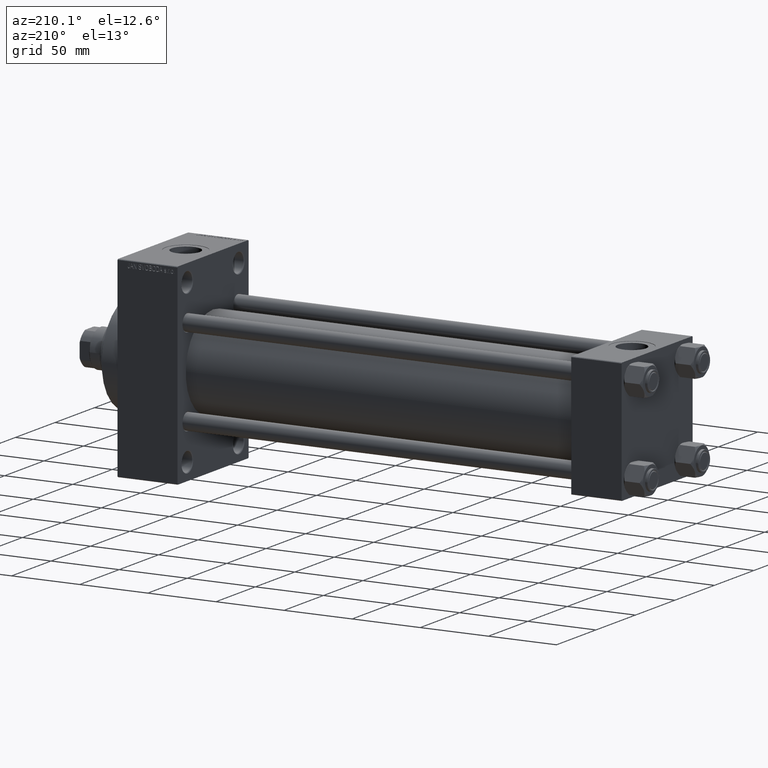
[diagram: clean part render]
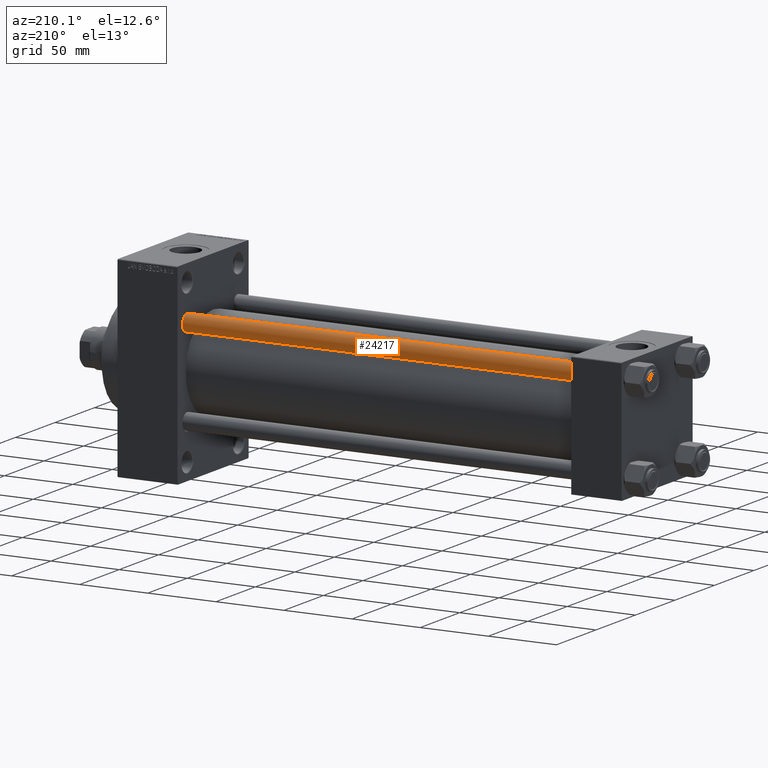
[diagram: same view with one face highlighted and labeled with its STEP entity id]
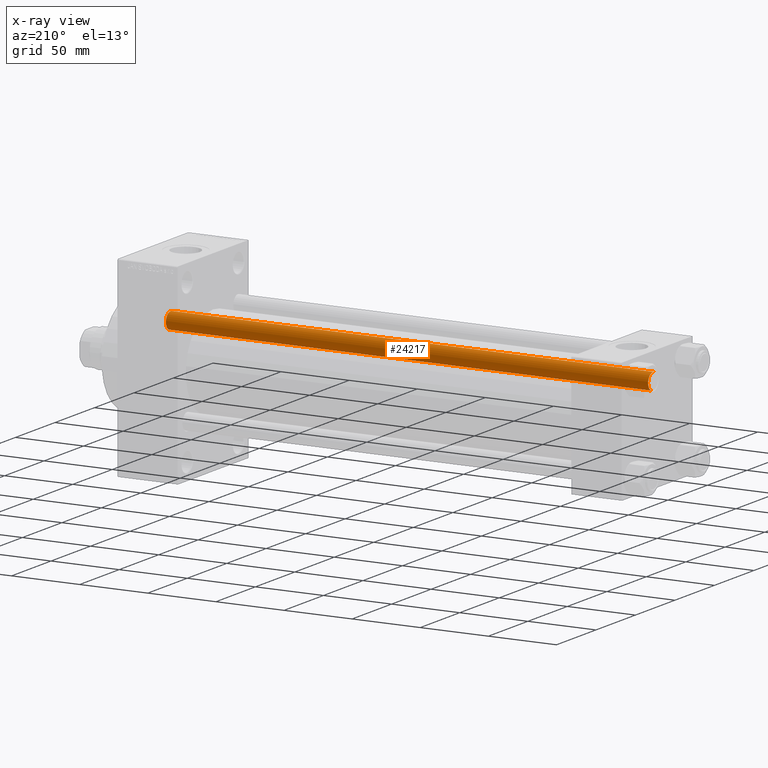
[diagram: x-ray of the same camera — body ghosted, the highlighted face saturated]
A machine part, auxiliary view. The second image highlights one B-rep face of the part: STEP entity #24217.
The next image is the same camera in x-ray: the body ghosted, the highlighted face saturated — about 0% of this face is hidden behind the body in this view.
In plain terms, the highlighted cylindrical surface (edge-blend (fillet) strip) has radius 6 mm, axis along (-1, -0, 0).
Its self-contained STEP definition (entity closure, byte-faithful):
#698 = ORIENTED_EDGE ( 'NONE', *, *, #22772, .T. ) ;
#872 = VERTEX_POINT ( 'NONE', #12785 ) ;
#1642 = LINE ( 'NONE', #16730, #37522 ) ;
#2479 = VERTEX_POINT ( 'NONE', #46962 ) ;
#2575 = CARTESIAN_POINT ( 'NONE',  ( 0.000000000000000000, 0.000000000000000000, 0.5000000000001114664 ) ) ;
#2928 = ORIENTED_EDGE ( 'NONE', *, *, #8222, .T. ) ;
#4048 = ORIENTED_EDGE ( 'NONE', *, *, #20459, .F. ) ;
#4221 = DIRECTION ( 'NONE',  ( 1.000000000000000000, 0.000000000000000000, 0.000000000000000000 ) ) ;
#5258 = FACE_OUTER_BOUND ( 'NONE', #6429, .T. ) ;
#6429 = EDGE_LOOP ( 'NONE', ( #698, #2928, #17358, #4048 ) ) ;
#6736 = AXIS2_PLACEMENT_3D ( 'NONE', #2575, #16252, #42613 ) ;
#6973 = LINE ( 'NONE', #35514, #40619 ) ;
#8222 = EDGE_CURVE ( 'NONE', #2479, #13256, #6973, .T. ) ;
#12785 = CARTESIAN_POINT ( 'NONE',  ( -6.000000000000000888, 0.000000000000000000, 0.5000000000001114664 ) ) ;
#13153 = CARTESIAN_POINT ( 'NONE',  ( 0.000000000000000000, 0.000000000000000000, 355.0000000000000000 ) ) ;
#13256 = VERTEX_POINT ( 'NONE', #41094 ) ;
#16252 = DIRECTION ( 'NONE',  ( -0.000000000000000000, -0.000000000000000000, 1.000000000000000000 ) ) ;
#16730 = CARTESIAN_POINT ( 'NONE',  ( -6.000000000000000888, 0.000000000000000000, 355.0000000000000000 ) ) ;
#17358 = ORIENTED_EDGE ( 'NONE', *, *, #46865, .T. ) ;
#17860 = VERTEX_POINT ( 'NONE', #42684 ) ;
#19898 = CYLINDRICAL_SURFACE ( 'NONE', #27568, 6.000000000000000888 ) ;
#19985 = AXIS2_PLACEMENT_3D ( 'NONE', #26285, #29411, #4221 ) ;
#20137 = DIRECTION ( 'NONE',  ( -1.000000000000000000, 0.000000000000000000, 0.000000000000000000 ) ) ;
#20459 = EDGE_CURVE ( 'NONE', #17860, #872, #1642, .T. ) ;
#22772 = EDGE_CURVE ( 'NONE', #17860, #2479, #23703, .T. ) ;
#23703 = CIRCLE ( 'NONE', #19985, 6.000000000000000888 ) ;
#24217 = ADVANCED_FACE ( 'NONE', ( #5258 ), #19898, .T. ) ;
#26285 = CARTESIAN_POINT ( 'NONE',  ( 0.000000000000000000, 0.000000000000000000, 354.5000000000000000 ) ) ;
#27410 = CIRCLE ( 'NONE', #6736, 6.000000000000000888 ) ;
#27532 = DIRECTION ( 'NONE',  ( -0.000000000000000000, -0.000000000000000000, -1.000000000000000000 ) ) ;
#27568 = AXIS2_PLACEMENT_3D ( 'NONE', #13153, #42178, #20137 ) ;
#29411 = DIRECTION ( 'NONE',  ( 0.000000000000000000, 0.000000000000000000, -1.000000000000000000 ) ) ;
#35514 = CARTESIAN_POINT ( 'NONE',  ( 6.000000000000000888, 7.347880794884120722E-16, 355.0000000000000000 ) ) ;
#37522 = VECTOR ( 'NONE', #27532, 1000.000000000000000 ) ;
#40619 = VECTOR ( 'NONE', #42471, 1000.000000000000000 ) ;
#41094 = CARTESIAN_POINT ( 'NONE',  ( 6.000000000000000888, 7.347880794884120722E-16, 0.5000000000001114664 ) ) ;
#42178 = DIRECTION ( 'NONE',  ( -0.000000000000000000, -0.000000000000000000, -1.000000000000000000 ) ) ;
#42471 = DIRECTION ( 'NONE',  ( -0.000000000000000000, -0.000000000000000000, -1.000000000000000000 ) ) ;
#42613 = DIRECTION ( 'NONE',  ( 1.000000000000000000, 0.000000000000000000, 0.000000000000000000 ) ) ;
#42684 = CARTESIAN_POINT ( 'NONE',  ( -6.000000000000000888, 0.000000000000000000, 354.5000000000000000 ) ) ;
#46865 = EDGE_CURVE ( 'NONE', #13256, #872, #27410, .T. ) ;
#46962 = CARTESIAN_POINT ( 'NONE',  ( 6.000000000000000888, 7.347880794884120722E-16, 354.5000000000000000 ) ) ;